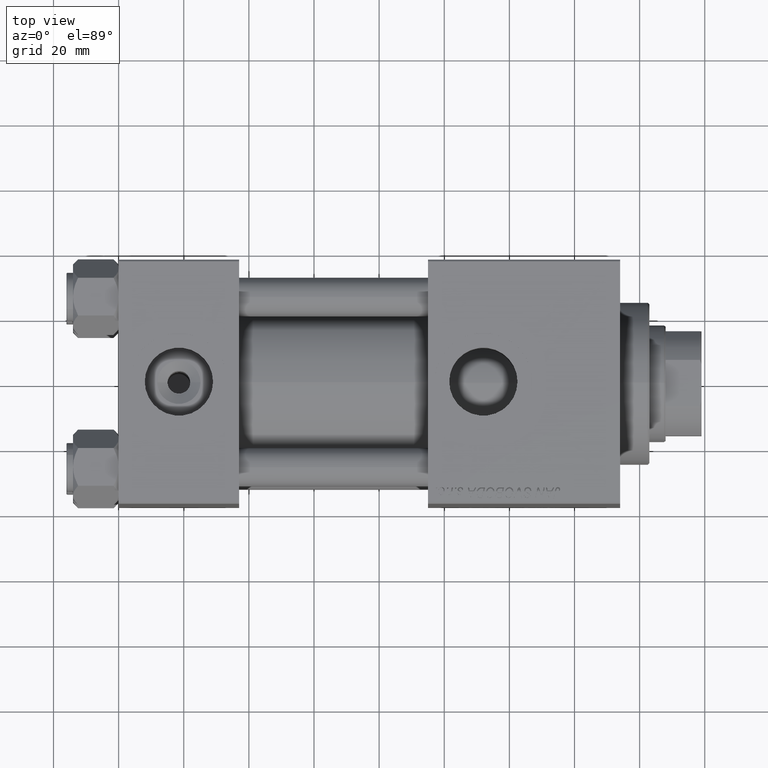
[diagram: clean part render]
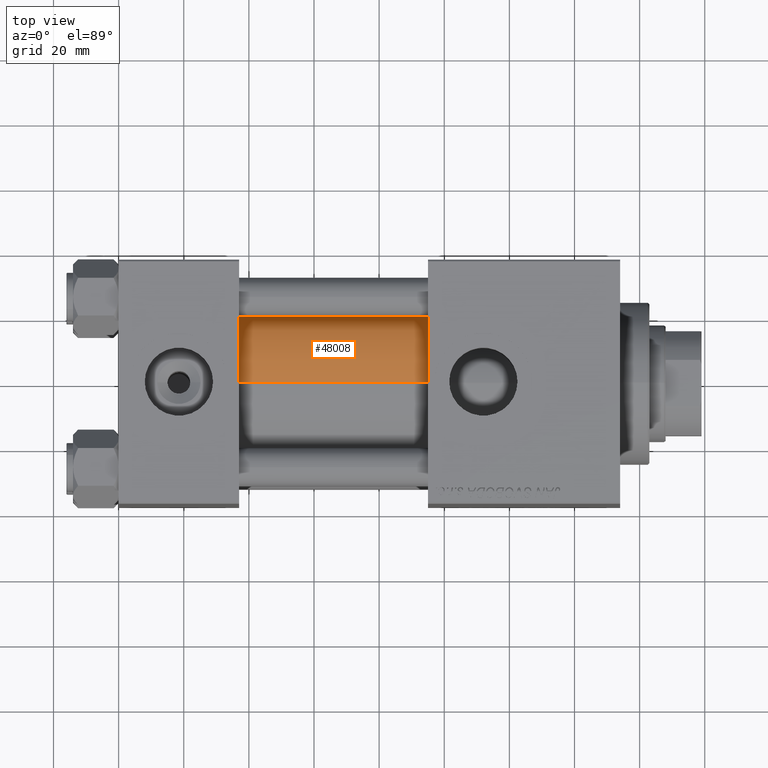
[diagram: same view with one face highlighted and labeled with its STEP entity id]
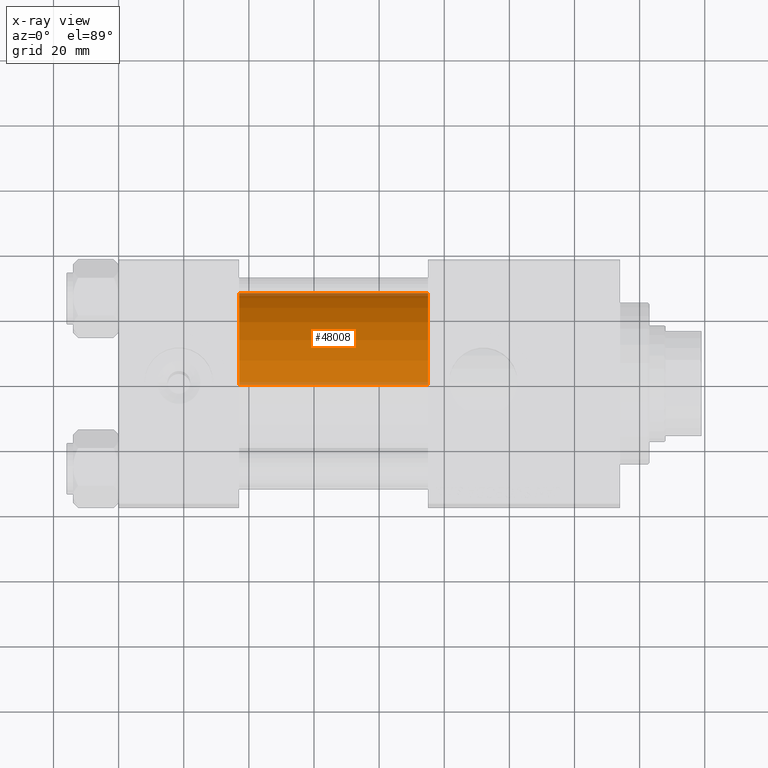
[diagram: x-ray of the same camera — body ghosted, the highlighted face saturated]
A machine part, top view. The second image highlights one B-rep face of the part: STEP entity #48008.
The next image is the same camera in x-ray: the body ghosted, the highlighted face saturated — about 7% of this face is hidden behind the body in this view.
In plain terms, the highlighted cylindrical surface (partial cylindrical patch) has radius 28 mm, axis along (-1, -0, -0).
Its self-contained STEP definition (entity closure, byte-faithful):
#655 = CARTESIAN_POINT ( 'NONE',  ( 95.00000000000000000, 8.269258236473776482E-16, -28.00000000000000000 ) ) ;
#1359 = LINE ( 'NONE', #43985, #17520 ) ;
#2294 = VERTEX_POINT ( 'NONE', #4370 ) ;
#3833 = DIRECTION ( 'NONE',  ( -1.000000000000000000, -0.000000000000000000, -0.000000000000000000 ) ) ;
#4370 = CARTESIAN_POINT ( 'NONE',  ( 37.00000000000000000, -2.602085213965210642E-15, 28.00000000000000000 ) ) ;
#5172 = LINE ( 'NONE', #33462, #23260 ) ;
#6199 = CARTESIAN_POINT ( 'NONE',  ( 95.00000000000000000, -2.602085213965210642E-15, 0.000000000000000000 ) ) ;
#11006 = AXIS2_PLACEMENT_3D ( 'NONE', #20366, #36483, #48604 ) ;
#11592 = VERTEX_POINT ( 'NONE', #655 ) ;
#12427 = CARTESIAN_POINT ( 'NONE',  ( 37.00000000000000000, -2.602085213965210642E-15, 0.000000000000000000 ) ) ;
#12584 = DIRECTION ( 'NONE',  ( -1.000000000000000000, -0.000000000000000000, -0.000000000000000000 ) ) ;
#14975 = AXIS2_PLACEMENT_3D ( 'NONE', #12427, #16929, #16410 ) ;
#15001 = CARTESIAN_POINT ( 'NONE',  ( 95.00000000000000000, -2.602085213965210642E-15, 28.00000000000000000 ) ) ;
#16410 = DIRECTION ( 'NONE',  ( 0.000000000000000000, 0.000000000000000000, 1.000000000000000000 ) ) ;
#16929 = DIRECTION ( 'NONE',  ( 1.000000000000000000, -0.000000000000000000, 0.000000000000000000 ) ) ;
#17520 = VECTOR ( 'NONE', #3833, 1000.000000000000000 ) ;
#19164 = CARTESIAN_POINT ( 'NONE',  ( 37.00000000000000000, 8.269258236473776482E-16, -28.00000000000000000 ) ) ;
#19206 = CIRCLE ( 'NONE', #14975, 28.00000000000000000 ) ;
#20366 = CARTESIAN_POINT ( 'NONE',  ( 95.00000000000000000, -2.602085213965210642E-15, 0.000000000000000000 ) ) ;
#22059 = DIRECTION ( 'NONE',  ( 1.000000000000000000, 0.000000000000000000, 0.000000000000000000 ) ) ;
#23260 = VECTOR ( 'NONE', #12584, 1000.000000000000000 ) ;
#23622 = ORIENTED_EDGE ( 'NONE', *, *, #32986, .T. ) ;
#28581 = ORIENTED_EDGE ( 'NONE', *, *, #40929, .T. ) ;
#30265 = DIRECTION ( 'NONE',  ( 0.000000000000000000, 0.000000000000000000, -1.000000000000000000 ) ) ;
#31709 = VERTEX_POINT ( 'NONE', #15001 ) ;
#32533 = CYLINDRICAL_SURFACE ( 'NONE', #11006, 28.00000000000000000 ) ;
#32986 = EDGE_CURVE ( 'NONE', #11592, #33850, #5172, .T. ) ;
#33462 = CARTESIAN_POINT ( 'NONE',  ( 95.00000000000000000, 8.269258236473776482E-16, -28.00000000000000000 ) ) ;
#33690 = CIRCLE ( 'NONE', #38737, 28.00000000000000000 ) ;
#33850 = VERTEX_POINT ( 'NONE', #19164 ) ;
#36483 = DIRECTION ( 'NONE',  ( -1.000000000000000000, -0.000000000000000000, -0.000000000000000000 ) ) ;
#38737 = AXIS2_PLACEMENT_3D ( 'NONE', #6199, #22059, #30265 ) ;
#39188 = ORIENTED_EDGE ( 'NONE', *, *, #40572, .F. ) ;
#39648 = FACE_OUTER_BOUND ( 'NONE', #48681, .T. ) ;
#40572 = EDGE_CURVE ( 'NONE', #31709, #2294, #1359, .T. ) ;
#40929 = EDGE_CURVE ( 'NONE', #33850, #2294, #19206, .T. ) ;
#43985 = CARTESIAN_POINT ( 'NONE',  ( 95.00000000000000000, -2.602085213965210642E-15, 28.00000000000000000 ) ) ;
#45182 = EDGE_CURVE ( 'NONE', #11592, #31709, #33690, .T. ) ;
#48008 = ADVANCED_FACE ( 'NONE', ( #39648 ), #32533, .T. ) ;
#48158 = ORIENTED_EDGE ( 'NONE', *, *, #45182, .F. ) ;
#48604 = DIRECTION ( 'NONE',  ( 0.000000000000000000, 0.000000000000000000, 1.000000000000000000 ) ) ;
#48681 = EDGE_LOOP ( 'NONE', ( #48158, #23622, #28581, #39188 ) ) ;